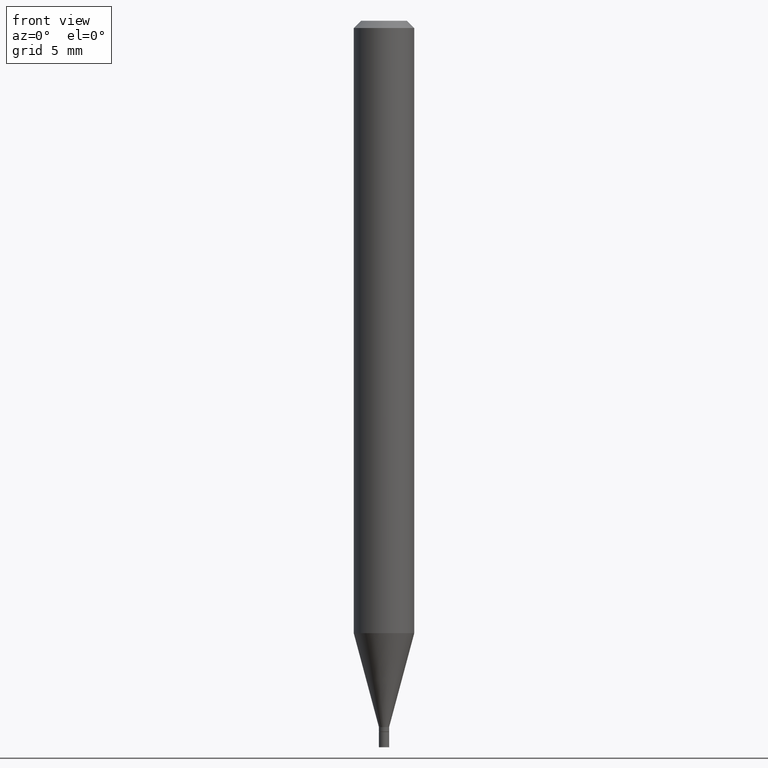
[diagram: clean part render]
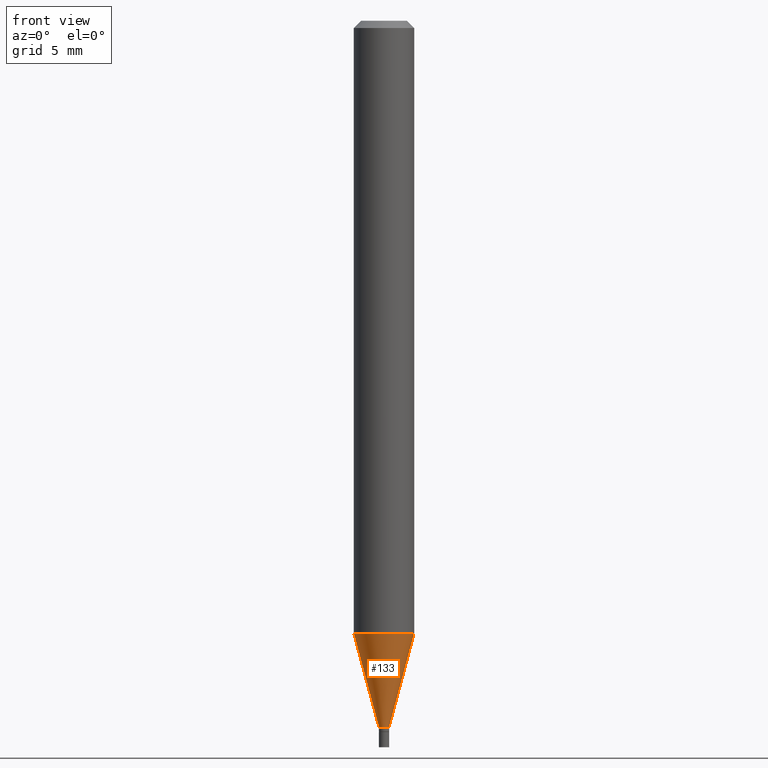
[diagram: same view with one face highlighted and labeled with its STEP entity id]
A machine part, front view. The second image highlights one B-rep face of the part: STEP entity #133.
In plain terms, the highlighted conical surface has half-angle 15 deg.
Its self-contained STEP definition (entity closure, byte-faithful):
#25 = ORIENTED_EDGE ( 'NONE', *, *, #340, .F. ) ;
#36 = CARTESIAN_POINT ( 'NONE',  ( 0.06250000000000000000, -4.851180641045576712E-15, -1.264433358006418651 ) ) ;
#46 = DIRECTION ( 'NONE',  ( -2.445468806185136597E-29, 3.491481338843145583E-15, 1.000000000000000000 ) ) ;
#58 = CARTESIAN_POINT ( 'NONE',  ( 0.01049999999999992432, -5.165646640818432586E-15, -1.458500000000000130 ) ) ;
#59 = ORIENTED_EDGE ( 'NONE', *, *, #400, .T. ) ;
#67 = DIRECTION ( 'NONE',  ( 0.2588190451025214611, 1.565188264969621573E-15, 0.9659258262890682012 ) ) ;
#119 = LINE ( 'NONE', #231, #380 ) ;
#120 = CIRCLE ( 'NONE', #251, 0.06250000000000000000 ) ;
#122 = CARTESIAN_POINT ( 'NONE',  ( 3.566716253821021430E-29, -5.092325532702727858E-15, -1.458500000000000130 ) ) ;
#133 = ADVANCED_FACE ( 'NONE', ( #439 ), #338, .T. ) ;
#155 = CARTESIAN_POINT ( 'NONE',  ( -0.01049999999999992432, -4.494187404644019652E-15, -1.458500000000000130 ) ) ;
#171 = LINE ( 'NONE', #391, #306 ) ;
#198 = DIRECTION ( 'NONE',  ( -2.445468806185136597E-29, 3.491481338843145583E-15, 1.000000000000000000 ) ) ;
#230 = CIRCLE ( 'NONE', #443, 0.01049999999999992432 ) ;
#231 = CARTESIAN_POINT ( 'NONE',  ( -0.01049999999999992432, -5.017718545447917667E-15, -1.458500000000000130 ) ) ;
#246 = VERTEX_POINT ( 'NONE', #155 ) ;
#249 = EDGE_LOOP ( 'NONE', ( #449, #324, #59, #25 ) ) ;
#251 = AXIS2_PLACEMENT_3D ( 'NONE', #362, #360, #322 ) ;
#264 = EDGE_CURVE ( 'NONE', #246, #384, #119, .T. ) ;
#269 = DIRECTION ( 'NONE',  ( -0.2588190451025214611, 5.211531920934551042E-15, 0.9659258262890682012 ) ) ;
#284 = CARTESIAN_POINT ( 'NONE',  ( -0.06250000000000000000, -3.970656263840122426E-15, -1.264433358006418651 ) ) ;
#302 = EDGE_CURVE ( 'NONE', #246, #457, #230, .T. ) ;
#306 = VECTOR ( 'NONE', #67, 39.37007874015747433 ) ;
#316 = AXIS2_PLACEMENT_3D ( 'NONE', #122, #46, #408 ) ;
#322 = DIRECTION ( 'NONE',  ( 1.000000000000000000, -6.982962677686262766E-15, 0.000000000000000000 ) ) ;
#324 = ORIENTED_EDGE ( 'NONE', *, *, #302, .T. ) ;
#338 = CONICAL_SURFACE ( 'NONE', #316, 0.01049999999999992432, 0.2617993877991501295 ) ;
#340 = EDGE_CURVE ( 'NONE', #384, #353, #120, .T. ) ;
#353 = VERTEX_POINT ( 'NONE', #36 ) ;
#360 = DIRECTION ( 'NONE',  ( -2.445468806185136597E-29, 3.491481338843145583E-15, 1.000000000000000000 ) ) ;
#362 = CARTESIAN_POINT ( 'NONE',  ( 3.092132334504619836E-29, -4.414745473690185042E-15, -1.264433358006418651 ) ) ;
#380 = VECTOR ( 'NONE', #269, 39.37007874015747433 ) ;
#384 = VERTEX_POINT ( 'NONE', #284 ) ;
#385 = DIRECTION ( 'NONE',  ( 1.000000000000000000, -6.982962677686243834E-15, 0.000000000000000000 ) ) ;
#391 = CARTESIAN_POINT ( 'NONE',  ( 0.01049999999999992432, -5.165646640818432586E-15, -1.458500000000000130 ) ) ;
#400 = EDGE_CURVE ( 'NONE', #457, #353, #171, .T. ) ;
#408 = DIRECTION ( 'NONE',  ( 1.000000000000000000, -6.982962677686243834E-15, 0.000000000000000000 ) ) ;
#439 = FACE_OUTER_BOUND ( 'NONE', #249, .T. ) ;
#443 = AXIS2_PLACEMENT_3D ( 'NONE', #461, #198, #385 ) ;
#449 = ORIENTED_EDGE ( 'NONE', *, *, #264, .F. ) ;
#457 = VERTEX_POINT ( 'NONE', #58 ) ;
#461 = CARTESIAN_POINT ( 'NONE',  ( 3.566716253821021430E-29, -5.092325532702727858E-15, -1.458500000000000130 ) ) ;